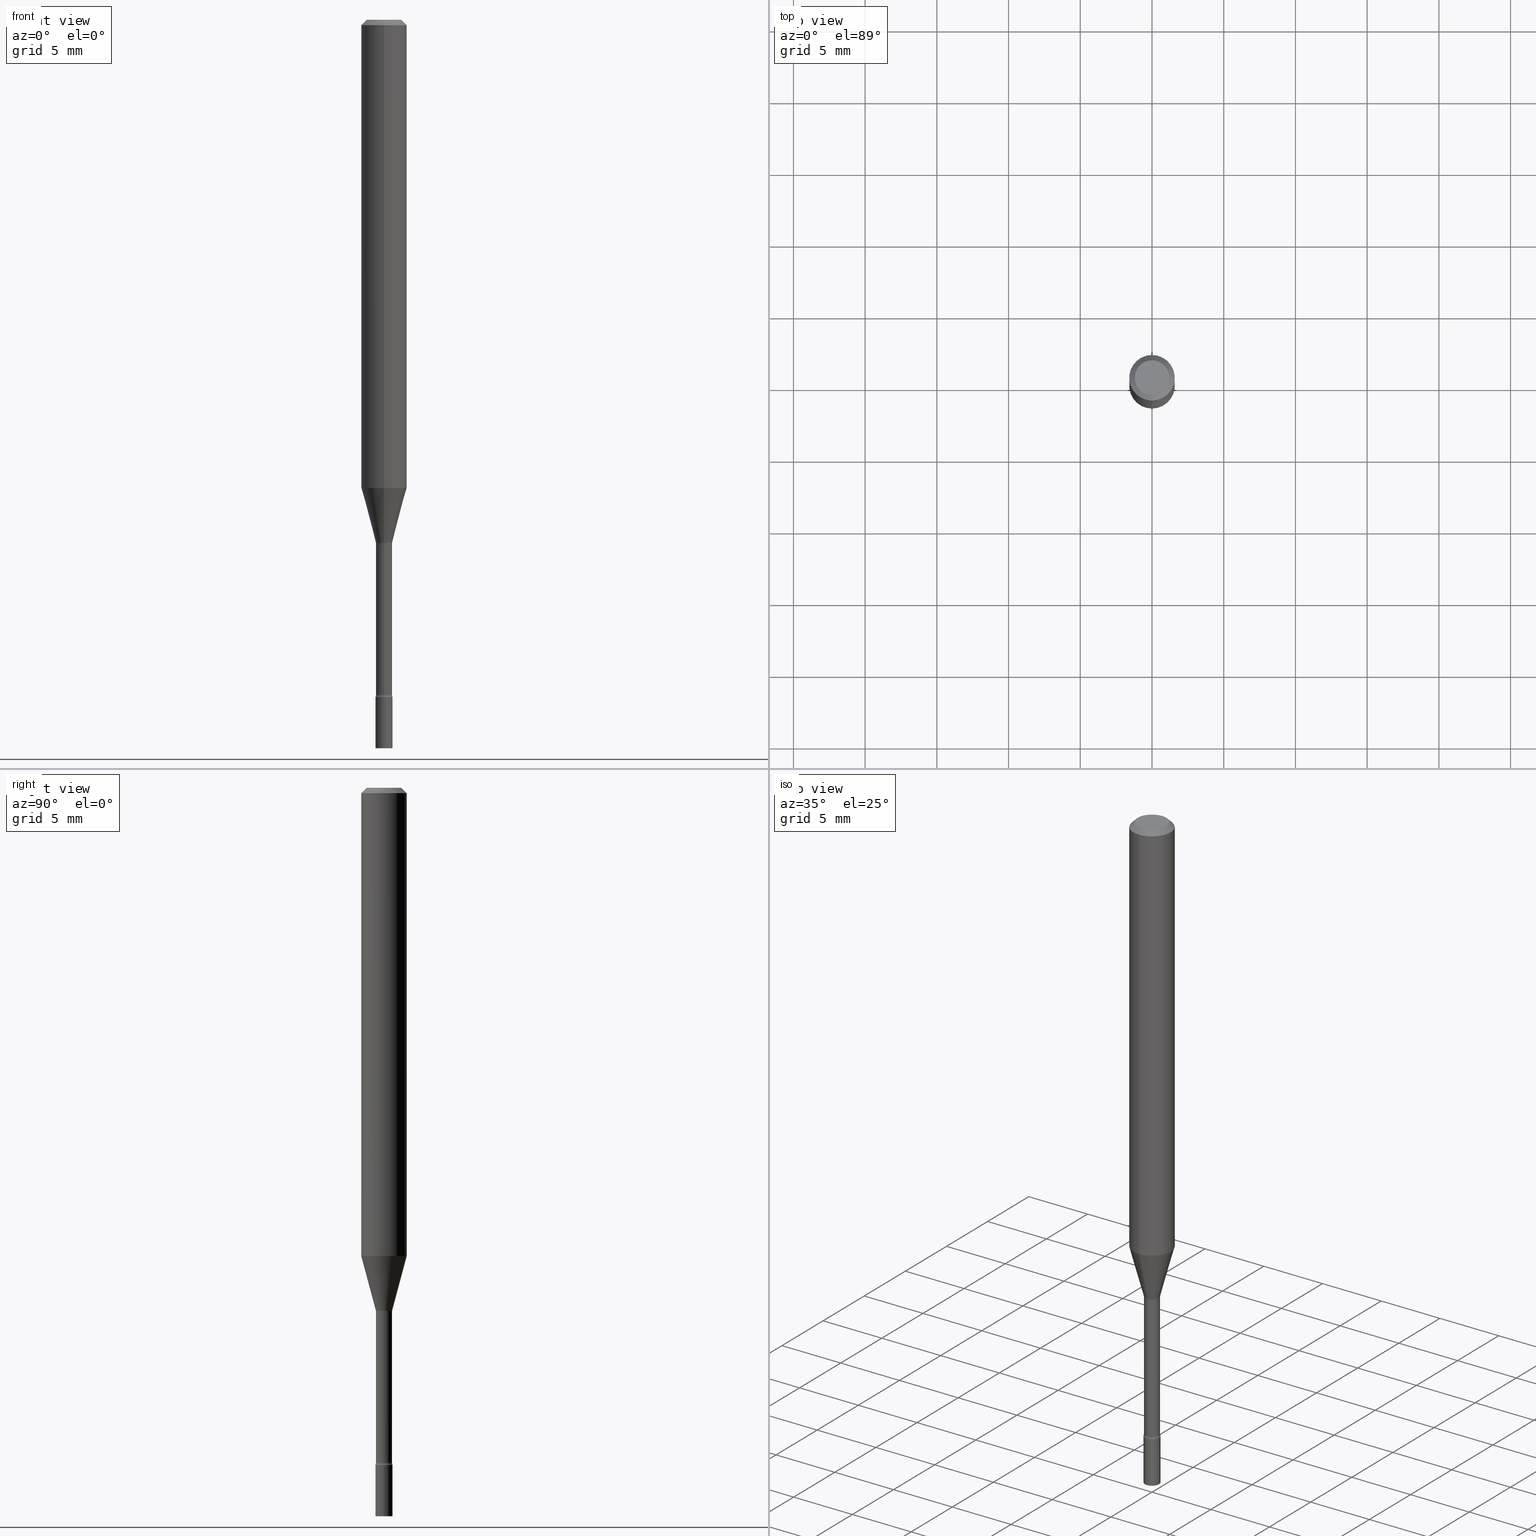
[diagram: canonical four-view strip — front | top / right | iso, engineering-drawing reading convention]
A machine part, canonical four-view strip (front | top / right | iso — engineering-drawing reading convention). The complete STEP part file that produces these views, byte-faithful:
ISO-10303-21;
HEADER;
FILE_DESCRIPTION (( 'STEP AP203' ),
    '1' );
FILE_NAME ('09856.STEP',
    '2024-03-09T02:22:24',
    ( '' ),
    ( '' ),
    'SwSTEP 2.0',
    'SolidWorks 2023',
    '' );
FILE_SCHEMA (( 'CONFIG_CONTROL_DESIGN' ));
ENDSEC;

DATA;
#1 = ORIENTED_EDGE ( 'NONE', *, *, #243, .T. ) ;
#2 = DIRECTION ( 'NONE',  ( 1.000000000000000000, -6.982962677686269866E-15, 0.000000000000000000 ) ) ;
#3 = AXIS2_PLACEMENT_3D ( 'NONE', #383, #83, #42 ) ;
#4 = APPLICATION_PROTOCOL_DEFINITION ( 'international standard', 'config_control_design', 1994, #435 ) ;
#5 = CIRCLE ( 'NONE', #487, 0.01500000000000002720 ) ;
#6 = EDGE_CURVE ( 'NONE', #318, #485, #70, .T. ) ;
#7 = DIRECTION ( 'NONE',  ( 1.000000000000000000, -7.105427357601001070E-15, 4.926315336922240552E-29 ) ) ;
#8 = CIRCLE ( 'NONE', #43, 0.02261111260566397996 ) ;
#9 = AXIS2_PLACEMENT_3D ( 'NONE', #15, #255, #408 ) ;
#10 = APPROVAL ( #56, 'UNSPECIFIED' ) ;
#11 = CIRCLE ( 'NONE', #241, 0.02350000000000000352 ) ;
#12 = LOCAL_TIME ( 21, 22, 24.00000000000000000, #402 ) ;
#13 = AXIS2_PLACEMENT_3D ( 'NONE', #507, #232, #501 ) ;
#14 = DIRECTION ( 'NONE',  ( -6.982962677686265922E-15, -1.000000000000000000, 3.491467325019567696E-15 ) ) ;
#15 = CARTESIAN_POINT ( 'NONE',  ( 3.668217887978764348E-31, -5.237200987529362293E-17, -0.01500000000000003067 ) ) ;
#16 = EDGE_CURVE ( 'NONE', #422, #485, #69, .T. ) ;
#17 = ORIENTED_EDGE ( 'NONE', *, *, #454, .T. ) ;
#18 = APPROVAL_ROLE ( '' ) ;
#19 = DIRECTION ( 'NONE',  ( -2.445468806185136597E-29, 3.491481338843145583E-15, 1.000000000000000000 ) ) ;
#20 = DIRECTION ( 'NONE',  ( 7.105427357601001859E-15, 1.000000000000000000, 0.000000000000000000 ) ) ;
#21 = CARTESIAN_POINT ( 'NONE',  ( 0.000000000000000000, 0.000000000000000000, 0.000000000000000000 ) ) ;
#22 = ORIENTED_EDGE ( 'NONE', *, *, #153, .T. ) ;
#23 = VERTEX_POINT ( 'NONE', #288 ) ;
#24 = CONICAL_SURFACE ( 'NONE', #404, 0.06250000000000000000, 0.7853981633974483900 ) ;
#25 = APPROVAL ( #514, 'UNSPECIFIED' ) ;
#26 = AXIS2_PLACEMENT_3D ( 'NONE', #455, #99, #460 ) ;
#27 = DIRECTION ( 'NONE',  ( -1.000000000000000000, 6.982962677686265922E-15, -4.883557194083112340E-29 ) ) ;
#28 = CARTESIAN_POINT ( 'NONE',  ( 3.516522486823451947E-29, -5.020662136156834766E-15, -1.437974787463811133 ) ) ;
#29 = ORIENTED_EDGE ( 'NONE', *, *, #50, .T. ) ;
#30 = ORIENTED_EDGE ( 'NONE', *, *, #208, .F. ) ;
#31 = DIRECTION ( 'NONE',  ( -6.982962677686265922E-15, -1.000000000000000000, 4.370956789862821150E-15 ) ) ;
#32 = DIRECTION ( 'NONE',  ( -2.445478591985838029E-29, 3.491467325019567696E-15, 1.000000000000000000 ) ) ;
#33 = CARTESIAN_POINT ( 'NONE',  ( 4.546144702501673568E-29, -6.490637757211377196E-15, -1.858999999999999986 ) ) ;
#34 = ORIENTED_EDGE ( 'NONE', *, *, #16, .F. ) ;
#35 = PERSON_AND_ORGANIZATION ( #355, #94 ) ;
#36 = PLANE ( 'NONE',  #3 ) ;
#37 = ORIENTED_EDGE ( 'NONE', *, *, #219, .F. ) ;
#38 =( LENGTH_UNIT ( ) NAMED_UNIT ( * ) SI_UNIT ( $, .METRE. ) );
#39 = ADVANCED_FACE ( 'NONE', ( #279 ), #370, .T. ) ;
#40 = ORIENTED_EDGE ( 'NONE', *, *, #254, .F. ) ;
#41 = DIRECTION ( 'NONE',  ( -2.445478591985837749E-29, 3.491467325019568091E-15, 1.000000000000000000 ) ) ;
#42 = DIRECTION ( 'NONE',  ( -6.982962677686265922E-15, -1.000000000000000000, 3.491467325019568091E-15 ) ) ;
#43 = AXIS2_PLACEMENT_3D ( 'NONE', #281, #278, #445 ) ;
#44 = PERSON_AND_ORGANIZATION ( #355, #94 ) ;
#45 = ADVANCED_FACE ( 'NONE', ( #420 ), #403, .T. ) ;
#46 = TOROIDAL_SURFACE ( 'NONE', #356, 0.03710000000000000103, 0.01500000000000002720 ) ;
#47 = DIRECTION ( 'NONE',  ( 1.000000000000000000, -6.982962677686269866E-15, 0.000000000000000000 ) ) ;
#48 = CC_DESIGN_PERSON_AND_ORGANIZATION_ASSIGNMENT ( #110, #156, ( #343 ) ) ;
#49 = ORIENTED_EDGE ( 'NONE', *, *, #76, .F. ) ;
#50 = EDGE_CURVE ( 'NONE', #59, #339, #416, .T. ) ;
#51 = CARTESIAN_POINT ( 'NONE',  ( -4.364351673553603615E-16, -0.06250000000000451028, -1.285225147374217780 ) ) ;
#52 = CONICAL_SURFACE ( 'NONE', #352, 0.06250000000000000000, 0.7853981633974483900 ) ;
#53 = LOCAL_TIME ( 21, 22, 24.00000000000000000, #233 ) ;
#54 = CARTESIAN_POINT ( 'NONE',  ( -2.590679153421253437E-16, -0.03710000000000502479, -1.437974787463811133 ) ) ;
#55 = AXIS2_PLACEMENT_3D ( 'NONE', #459, #447, #136 ) ;
#56 = APPROVAL_STATUS ( 'not_yet_approved' ) ;
#57 = DIRECTION ( 'NONE',  ( 1.000000000000000000, -6.982962677686265922E-15, 4.876176775795935793E-29 ) ) ;
#58 = CARTESIAN_POINT ( 'NONE',  ( 3.668217887978764348E-31, -5.237200987529362293E-17, -0.01500000000000003067 ) ) ;
#59 = VERTEX_POINT ( 'NONE', #182 ) ;
#60 = CARTESIAN_POINT ( 'NONE',  ( -2.590679153421155323E-16, -0.03710000000000652359, -1.852672283192177582 ) ) ;
#61 = CARTESIAN_POINT ( 'NONE',  ( 3.516536558558135871E-29, -5.020641984631854302E-15, -1.437974787463811133 ) ) ;
#62 = ORIENTED_EDGE ( 'NONE', *, *, #63, .T. ) ;
#63 = EDGE_CURVE ( 'NONE', #292, #114, #453, .T. ) ;
#64 = DIRECTION ( 'NONE',  ( -6.982962677686265922E-15, -1.000000000000000000, 0.000000000000000000 ) ) ;
#65 = CARTESIAN_POINT ( 'NONE',  ( 0.02350000000000000352, -6.654763431835035084E-15, -1.858999999999999986 ) ) ;
#66 = FACE_OUTER_BOUND ( 'NONE', #138, .T. ) ;
#67 = AXIS2_PLACEMENT_3D ( 'NONE', #213, #226, #178 ) ;
#68 = VERTEX_POINT ( 'NONE', #146 ) ;
#69 = CIRCLE ( 'NONE', #372, 0.06250000000000000000 ) ;
#70 = LINE ( 'NONE', #329, #128 ) ;
#71 = EDGE_LOOP ( 'NONE', ( #49, #467, #303, #34 ) ) ;
#72 = CARTESIAN_POINT ( 'NONE',  ( -1.578925554262779717E-16, -0.02261111260566898637, -1.434092501787273211 ) ) ;
#73 = CC_DESIGN_PERSON_AND_ORGANIZATION_ASSIGNMENT ( #222, #124, ( #300 ) ) ;
#74 = ORIENTED_EDGE ( 'NONE', *, *, #331, .T. ) ;
#75 = APPLICATION_PROTOCOL_DEFINITION ( 'international standard', 'config_control_design', 1994, #190 ) ;
#76 = EDGE_CURVE ( 'NONE', #464, #422, #462, .T. ) ;
#77 = VECTOR ( 'NONE', #198, 39.37007874015749564 ) ;
#78 = ORIENTED_EDGE ( 'NONE', *, *, #162, .F. ) ;
#79 = CARTESIAN_POINT ( 'NONE',  ( 0.000000000000000000, 0.000000000000000000, 0.000000000000000000 ) ) ;
#80 = DIRECTION ( 'NONE',  ( -6.982962677686265922E-15, -1.000000000000000000, 0.000000000000000000 ) ) ;
#81 = EDGE_CURVE ( 'NONE', #381, #59, #489, .T. ) ;
#82 = ORIENTED_EDGE ( 'NONE', *, *, #280, .T. ) ;
#83 = DIRECTION ( 'NONE',  ( -2.445478591985837749E-29, 3.491467325019568091E-15, 1.000000000000000000 ) ) ;
#84 = DIRECTION ( 'NONE',  ( -2.445478591985838029E-29, 3.491467325019567696E-15, 1.000000000000000000 ) ) ;
#85 = PLANE ( 'NONE',  #465 ) ;
#86 = DIRECTION ( 'NONE',  ( 4.937700262164548042E-15, 0.7071067811865451302, -0.7071067811865499042 ) ) ;
#87 = FACE_OUTER_BOUND ( 'NONE', #264, .T. ) ;
#88 = VECTOR ( 'NONE', #41, 39.37007874015748143 ) ;
#89 = LOCAL_TIME ( 21, 22, 24.00000000000000000, #480 ) ;
#90 = VECTOR ( 'NONE', #86, 39.37007874015748143 ) ;
#91 = EDGE_CURVE ( 'NONE', #114, #292, #262, .T. ) ;
#92 = ORIENTED_EDGE ( 'NONE', *, *, #16, .T. ) ;
#93 = DIRECTION ( 'NONE',  ( -6.982962677686266711E-15, -1.000000000000000000, 3.491467325019567302E-15 ) ) ;
#94 = ORGANIZATION ( 'UNSPECIFIED', 'UNSPECIFIED', '' ) ;
#95 = DIRECTION ( 'NONE',  ( -2.445478591985837749E-29, 3.491467325019568091E-15, 1.000000000000000000 ) ) ;
#96 = ADVANCED_FACE ( 'NONE', ( #66 ), #170, .F. ) ;
#97 = DIRECTION ( 'NONE',  ( -2.445478591985838029E-29, 3.491467325019567696E-15, 1.000000000000000000 ) ) ;
#98 = ORIENTED_EDGE ( 'NONE', *, *, #193, .T. ) ;
#99 = DIRECTION ( 'NONE',  ( -2.445478591985838029E-29, 3.491467325019567696E-15, 1.000000000000000000 ) ) ;
#100 = DIRECTION ( 'NONE',  ( -2.445478591985838029E-29, 3.491467325019567696E-15, 1.000000000000000000 ) ) ;
#101 = DATE_AND_TIME ( #166, #271 ) ;
#102 = LINE ( 'NONE', #411, #405 ) ;
#103 = CIRCLE ( 'NONE', #463, 0.04749999999999999362 ) ;
#104 = EDGE_LOOP ( 'NONE', ( #109, #29, #335, #426 ) ) ;
#105 = ORIENTED_EDGE ( 'NONE', *, *, #442, .T. ) ;
#106 = AXIS2_PLACEMENT_3D ( 'NONE', #228, #493, #293 ) ;
#107 = PRODUCT_RELATED_PRODUCT_CATEGORY ( 'detail', '', ( #196 ) ) ;
#108 = LINE ( 'NONE', #72, #77 ) ;
#109 = ORIENTED_EDGE ( 'NONE', *, *, #81, .T. ) ;
#110 = PERSON_AND_ORGANIZATION ( #355, #94 ) ;
#111 = ADVANCED_FACE ( 'NONE', ( #133 ), #344, .T. ) ;
#112 = EDGE_LOOP ( 'NONE', ( #451, #362 ) ) ;
#113 = PLANE ( 'NONE',  #436 ) ;
#114 = VERTEX_POINT ( 'NONE', #374 ) ;
#115 = VECTOR ( 'NONE', #450, 39.37007874015748143 ) ;
#116 = PERSON_AND_ORGANIZATION_ROLE ( 'creator' ) ;
#117 = CIRCLE ( 'NONE', #26, 0.02209999999999999812 ) ;
#118 = EDGE_CURVE ( 'NONE', #318, #349, #272, .T. ) ;
#119 = DIRECTION ( 'NONE',  ( 2.445478591985837749E-29, -3.491467325019568091E-15, -1.000000000000000000 ) ) ;
#120 = CARTESIAN_POINT ( 'NONE',  ( 1.606616180941167474E-16, 0.02261111260565897355, -1.434092501787273211 ) ) ;
#121 = CALENDAR_DATE ( 2024, 8, 3 ) ;
#122 = CIRCLE ( 'NONE', #332, 0.02350000000000000352 ) ;
#123 = APPROVAL_PERSON_ORGANIZATION ( #323, #10, #18 ) ;
#124 = PERSON_AND_ORGANIZATION_ROLE ( 'classification_officer' ) ;
#125 = EDGE_CURVE ( 'NONE', #386, #485, #102, .T. ) ;
#126 = APPROVAL ( #171, 'UNSPECIFIED' ) ;
#127 = AXIS2_PLACEMENT_3D ( 'NONE', #312, #7, #432 ) ;
#128 = VECTOR ( 'NONE', #221, 39.37007874015748143 ) ;
#129 = ORIENTED_EDGE ( 'NONE', *, *, #153, .F. ) ;
#130 = ORIENTED_EDGE ( 'NONE', *, *, #254, .T. ) ;
#131 = DIRECTION ( 'NONE',  ( -6.982962677686265922E-15, -1.000000000000000000, 3.491467325019568091E-15 ) ) ;
#132 = CARTESIAN_POINT ( 'NONE',  ( 4.546126510698169319E-29, -6.490663808909408226E-15, -1.858999999999999986 ) ) ;
#133 = FACE_OUTER_BOUND ( 'NONE', #410, .T. ) ;
#134 = ORIENTED_EDGE ( 'NONE', *, *, #211, .F. ) ;
#135 = DIRECTION ( 'NONE',  ( -2.445468806185136877E-29, 3.491481338843145188E-15, 1.000000000000000000 ) ) ;
#136 = DIRECTION ( 'NONE',  ( -6.982962677686265922E-15, -1.000000000000000000, 0.000000000000000000 ) ) ;
#137 = CC_DESIGN_PERSON_AND_ORGANIZATION_ASSIGNMENT ( #240, #351, ( #196 ) ) ;
#138 = EDGE_LOOP ( 'NONE', ( #294, #234, #98, #78 ) ) ;
#139 = CARTESIAN_POINT ( 'NONE',  ( 3.840629472727447874E-16, 0.04749999999999999362, -1.947592745229183872E-16 ) ) ;
#140 = VECTOR ( 'NONE', #135, 39.37007874015748143 ) ;
#141 = DIRECTION ( 'NONE',  ( -6.982962677686265922E-15, -1.000000000000000000, 0.000000000000000000 ) ) ;
#142 = DATE_AND_TIME ( #220, #12 ) ;
#143 = CALENDAR_DATE ( 2024, 8, 3 ) ;
#144 = CARTESIAN_POINT ( 'NONE',  ( 4.546126510698169319E-29, -6.490663808909408226E-15, -1.858999999999999986 ) ) ;
#145 = EDGE_LOOP ( 'NONE', ( #134, #154 ) ) ;
#146 = CARTESIAN_POINT ( 'NONE',  ( -0.02350000000000000352, -6.569835700394226398E-15, -2.000000000000000000 ) ) ;
#147 = FACE_OUTER_BOUND ( 'NONE', #104, .T. ) ;
#148 = DIRECTION ( 'NONE',  ( -6.982962677686265922E-15, -1.000000000000000000, 3.491467325019567696E-15 ) ) ;
#149 = DIRECTION ( 'NONE',  ( -2.445478591985838029E-29, 3.491467325019567696E-15, 1.000000000000000000 ) ) ;
#150 = ORIENTED_EDGE ( 'NONE', *, *, #440, .T. ) ;
#151 = FACE_OUTER_BOUND ( 'NONE', #473, .T. ) ;
#152 = CC_DESIGN_APPROVAL ( #10, ( #343 ) ) ;
#153 = EDGE_CURVE ( 'NONE', #59, #292, #201, .T. ) ;
#154 = ORIENTED_EDGE ( 'NONE', *, *, #454, .F. ) ;
#155 = AXIS2_PLACEMENT_3D ( 'NONE', #296, #258, #180 ) ;
#156 = PERSON_AND_ORGANIZATION_ROLE ( 'design_supplier' ) ;
#157 = EDGE_LOOP ( 'NONE', ( #474, #17, #412, #37 ) ) ;
#158 = APPROVAL_DATE_TIME ( #342, #25 ) ;
#159 = CARTESIAN_POINT ( 'NONE',  ( 4.440892098500937762E-16, 0.06249999999999548278, -1.285225147374218224 ) ) ;
#160 = CARTESIAN_POINT ( 'NONE',  ( 1.570299446030275858E-16, 0.02209999999999497783, -1.437974787463811133 ) ) ;
#161 = EDGE_LOOP ( 'NONE', ( #306, #503, #105, #92 ) ) ;
#162 = EDGE_CURVE ( 'NONE', #491, #283, #5, .T. ) ;
#163 = CARTESIAN_POINT ( 'NONE',  ( 3.316907271900976096E-16, 0.04749999999999999362, -1.803019862306739220E-16 ) ) ;
#164 = AXIS2_PLACEMENT_3D ( 'NONE', #431, #347, #308 ) ;
#165 = DIRECTION ( 'NONE',  ( -6.982962677686266711E-15, -1.000000000000000000, 3.491467325019567302E-15 ) ) ;
#166 = CALENDAR_DATE ( 2024, 8, 3 ) ;
#167 = ORIENTED_EDGE ( 'NONE', *, *, #118, .F. ) ;
#168 = EDGE_CURVE ( 'NONE', #485, #422, #393, .T. ) ;
#169 = CIRCLE ( 'NONE', #185, 0.02261111260566397996 ) ;
#170 = TOROIDAL_SURFACE ( 'NONE', #106, 0.03710000000000000103, 0.01500000000000002720 ) ;
#171 = APPROVAL_STATUS ( 'not_yet_approved' ) ;
#172 = PRODUCT_DEFINITION_SHAPE ( 'NONE', 'NONE',  #389 ) ;
#173 = ADVANCED_FACE ( 'NONE', ( #366 ), #477, .T. ) ;
#174 = ORIENTED_EDGE ( 'NONE', *, *, #91, .T. ) ;
#175 = CIRCLE ( 'NONE', #357, 0.06250000000000000000 ) ;
#176 = CARTESIAN_POINT ( 'NONE',  ( 3.668217887978764348E-31, -5.237200987529362293E-17, -0.01500000000000003067 ) ) ;
#177 = ORIENTED_EDGE ( 'NONE', *, *, #162, .T. ) ;
#178 = DIRECTION ( 'NONE',  ( 1.000000000000000000, -6.982962677686269866E-15, 0.000000000000000000 ) ) ;
#179 = LINE ( 'NONE', #496, #115 ) ;
#180 = DIRECTION ( 'NONE',  ( -6.982962677686265922E-15, -1.000000000000000000, 0.000000000000000000 ) ) ;
#181 = DIRECTION ( 'NONE',  ( -2.445478591985838029E-29, 3.491467325019567696E-15, 1.000000000000000000 ) ) ;
#182 = CARTESIAN_POINT ( 'NONE',  ( 1.620037437533484049E-16, 0.02209999999999359352, -1.852672283192177582 ) ) ;
#183 = DIRECTION ( 'NONE',  ( -2.445468806185136597E-29, 3.491481338843145583E-15, 1.000000000000000000 ) ) ;
#184 = CARTESIAN_POINT ( 'NONE',  ( 0.000000000000000000, 0.000000000000000000, 0.000000000000000000 ) ) ;
#185 = AXIS2_PLACEMENT_3D ( 'NONE', #286, #368, #495 ) ;
#186 = CARTESIAN_POINT ( 'NONE',  ( 0.000000000000000000, 0.000000000000000000, 0.000000000000000000 ) ) ;
#187 = AXIS2_PLACEMENT_3D ( 'NONE', #519, #84, #390 ) ;
#188 = DIRECTION ( 'NONE',  ( 1.839019923739599526E-15, 0.2588190451025248473, 0.9659258262890670910 ) ) ;
#189 = ORIENTED_EDGE ( 'NONE', *, *, #322, .F. ) ;
#190 = APPLICATION_CONTEXT ( 'configuration controlled 3d designs of mechanical parts and assemblies' ) ;
#191 = FACE_OUTER_BOUND ( 'NONE', #441, .T. ) ;
#192 = DIRECTION ( 'NONE',  ( -6.982962677686265922E-15, -1.000000000000000000, 3.491467325019567696E-15 ) ) ;
#193 = EDGE_CURVE ( 'NONE', #339, #283, #117, .T. ) ;
#194 = ORIENTED_EDGE ( 'NONE', *, *, #290, .F. ) ;
#195 = FACE_OUTER_BOUND ( 'NONE', #470, .T. ) ;
#196 = PRODUCT ( '09856', '09856', '', ( #205 ) ) ;
#197 = ORIENTED_EDGE ( 'NONE', *, *, #76, .T. ) ;
#198 = DIRECTION ( 'NONE',  ( -1.807323732225329350E-15, -0.2588190451025180194, 0.9659258262890689783 ) ) ;
#199 = CALENDAR_DATE ( 2024, 8, 3 ) ;
#200 = AXIS2_PLACEMENT_3D ( 'NONE', #79, #478, #269 ) ;
#201 = CIRCLE ( 'NONE', #268, 0.01499999999999998904 ) ;
#202 = CARTESIAN_POINT ( 'NONE',  ( 3.507042512048188960E-29, -5.007087111045831166E-15, -1.434092501787273211 ) ) ;
#203 = CC_DESIGN_DATE_AND_TIME_ASSIGNMENT ( #101, #276, ( #389 ) ) ;
#204 = ORIENTED_EDGE ( 'NONE', *, *, #481, .T. ) ;
#205 = MECHANICAL_CONTEXT ( 'NONE', #190, 'mechanical' ) ;
#206 = LENGTH_MEASURE_WITH_UNIT ( LENGTH_MEASURE( 0.02539999999999999897 ), #38 );
#207 = CC_DESIGN_DATE_AND_TIME_ASSIGNMENT ( #438, #244, ( #300 ) ) ;
#208 = EDGE_CURVE ( 'NONE', #381, #114, #353, .T. ) ;
#209 = ADVANCED_FACE ( 'NONE', ( #191 ), #52, .T. ) ;
#210 = VERTEX_POINT ( 'NONE', #65 ) ;
#211 = EDGE_CURVE ( 'NONE', #424, #68, #11, .T. ) ;
#212 = MANIFOLD_SOLID_BREP ( 'Body-Move/Copy2[1]', #444 ) ;
#213 = CARTESIAN_POINT ( 'NONE',  ( 4.546126510698169319E-29, -6.490663808909408226E-15, -1.858999999999999986 ) ) ;
#214 = LOCAL_TIME ( 21, 22, 24.00000000000000000, #483 ) ;
#215 = CARTESIAN_POINT ( 'NONE',  ( 3.142990583785493865E-29, -4.487321607350540658E-15, -1.285225147374218002 ) ) ;
#216 = AXIS2_PLACEMENT_3D ( 'NONE', #186, #261, #218 ) ;
#217 = DIRECTION ( 'NONE',  ( -1.000000000000000000, 6.982962677686265922E-15, -4.883557194083112340E-29 ) ) ;
#218 = DIRECTION ( 'NONE',  ( 1.000000000000000000, -6.982962677686265922E-15, 4.876176775795935793E-29 ) ) ;
#219 = EDGE_CURVE ( 'NONE', #23, #210, #298, .T. ) ;
#220 = CALENDAR_DATE ( 2024, 8, 3 ) ;
#221 = DIRECTION ( 'NONE',  ( -4.851104656540964275E-15, -0.7071067811865500152, -0.7071067811865450192 ) ) ;
#222 = PERSON_AND_ORGANIZATION ( #355, #94 ) ;
#223 = CARTESIAN_POINT ( 'NONE',  ( 1.640996229256761859E-16, 0.02349999999999301953, -2.000000000000000000 ) ) ;
#224 = ORIENTED_EDGE ( 'NONE', *, *, #81, .F. ) ;
#225 = EDGE_CURVE ( 'NONE', #338, #491, #169, .T. ) ;
#226 = DIRECTION ( 'NONE',  ( -2.445468806185136597E-29, 3.491481338843145583E-15, 1.000000000000000000 ) ) ;
#227 = VECTOR ( 'NONE', #188, 39.37007874015748143 ) ;
#228 = CARTESIAN_POINT ( 'NONE',  ( 3.516522486823451947E-29, -5.020662136156834766E-15, -1.437974787463811133 ) ) ;
#229 = VECTOR ( 'NONE', #95, 39.37007874015748143 ) ;
#230 = MANIFOLD_SOLID_BREP ( 'Body-Move/Copy2[2]', #394 ) ;
#231 = ORIENTED_EDGE ( 'NONE', *, *, #168, .T. ) ;
#232 = DIRECTION ( 'NONE',  ( -2.445468806185136597E-29, 3.491481338843145583E-15, 1.000000000000000000 ) ) ;
#233 = COORDINATED_UNIVERSAL_TIME_OFFSET ( 5, 0, .BEHIND. ) ;
#234 = ORIENTED_EDGE ( 'NONE', *, *, #310, .T. ) ;
#235 = LINE ( 'NONE', #299, #88 ) ;
#236 = EDGE_CURVE ( 'NONE', #424, #210, #458, .T. ) ;
#237 = AXIS2_PLACEMENT_3D ( 'NONE', #202, #313, #80 ) ;
#238 = ORIENTED_EDGE ( 'NONE', *, *, #118, .T. ) ;
#239 = DIRECTION ( 'NONE',  ( -2.445478591985838029E-29, 3.491467325019567696E-15, 1.000000000000000000 ) ) ;
#240 = PERSON_AND_ORGANIZATION ( #355, #94 ) ;
#241 = AXIS2_PLACEMENT_3D ( 'NONE', #400, #183, #47 ) ;
#242 = CIRCLE ( 'NONE', #317, 0.02210000000000006057 ) ;
#243 = EDGE_CURVE ( 'NONE', #59, #381, #242, .T. ) ;
#244 = DATE_TIME_ROLE ( 'classification_date' ) ;
#245 = FACE_OUTER_BOUND ( 'NONE', #161, .T. ) ;
#246 = ADVANCED_FACE ( 'NONE', ( #147 ), #320, .T. ) ;
#247 = CIRCLE ( 'NONE', #284, 0.02209999999999999812 ) ;
#248 = CC_DESIGN_SECURITY_CLASSIFICATION ( #300, ( #343 ) ) ;
#249 = SECURITY_CLASSIFICATION_LEVEL ( 'unclassified' ) ;
#250 = PERSON_AND_ORGANIZATION_ROLE ( 'creator' ) ;
#251 = DIRECTION ( 'NONE',  ( -2.445478591985838029E-29, 3.491467325019567696E-15, 1.000000000000000000 ) ) ;
#252 = DIRECTION ( 'NONE',  ( 1.000000000000000000, -7.105427357601001070E-15, 4.926315336922240552E-29 ) ) ;
#253 = CIRCLE ( 'NONE', #418, 0.06250000000000000000 ) ;
#254 = EDGE_CURVE ( 'NONE', #491, #338, #8, .T. ) ;
#255 = DIRECTION ( 'NONE',  ( -2.445478591985838029E-29, 3.491467325019567696E-15, 1.000000000000000000 ) ) ;
#256 = DIRECTION ( 'NONE',  ( 2.445478591985838029E-29, -3.491467325019567696E-15, -1.000000000000000000 ) ) ;
#257 = CARTESIAN_POINT ( 'NONE',  ( 7.070997803370271275E-46, -1.009542993615190646E-31, -2.891457658448894903E-17 ) ) ;
#258 = DIRECTION ( 'NONE',  ( -2.445478591985838029E-29, 3.491467325019567696E-15, 1.000000000000000000 ) ) ;
#259 = FACE_OUTER_BOUND ( 'NONE', #112, .T. ) ;
#260 = AXIS2_PLACEMENT_3D ( 'NONE', #132, #415, #57 ) ;
#261 = DIRECTION ( 'NONE',  ( -2.445468806185136597E-29, 3.491481338843145583E-15, 1.000000000000000000 ) ) ;
#262 = CIRCLE ( 'NONE', #319, 0.02350000000000000352 ) ;
#263 = ORIENTED_EDGE ( 'NONE', *, *, #290, .T. ) ;
#264 = EDGE_LOOP ( 'NONE', ( #130, #340, #505, #194 ) ) ;
#265 = FACE_OUTER_BOUND ( 'NONE', #145, .T. ) ;
#266 = ORIENTED_EDGE ( 'NONE', *, *, #211, .T. ) ;
#267 = CARTESIAN_POINT ( 'NONE',  ( 7.070997803370271275E-46, -1.009542993615190646E-31, -2.891457658448894903E-17 ) ) ;
#268 = AXIS2_PLACEMENT_3D ( 'NONE', #282, #252, #20 ) ;
#269 = DIRECTION ( 'NONE',  ( 1.000000000000000000, 0.000000000000000000, 0.000000000000000000 ) ) ;
#270 =( GEOMETRIC_REPRESENTATION_CONTEXT ( 3 ) GLOBAL_UNCERTAINTY_ASSIGNED_CONTEXT ( ( #439 ) ) GLOBAL_UNIT_ASSIGNED_CONTEXT ( ( #472, #466, #425 ) ) REPRESENTATION_CONTEXT ( 'NONE', 'WORKASPACE' ) );
#271 = LOCAL_TIME ( 21, 22, 24.00000000000000000, #399 ) ;
#272 = CIRCLE ( 'NONE', #429, 0.04749999999999999362 ) ;
#273 = PERSON_AND_ORGANIZATION ( #355, #94 ) ;
#274 = EDGE_CURVE ( 'NONE', #464, #386, #253, .T. ) ;
#275 = ORIENTED_EDGE ( 'NONE', *, *, #50, .F. ) ;
#276 = DATE_TIME_ROLE ( 'creation_date' ) ;
#277 = CC_DESIGN_PERSON_AND_ORGANIZATION_ASSIGNMENT ( #35, #116, ( #343 ) ) ;
#278 = DIRECTION ( 'NONE',  ( -2.445478591985838029E-29, 3.491467325019567696E-15, 1.000000000000000000 ) ) ;
#279 = FACE_OUTER_BOUND ( 'NONE', #157, .T. ) ;
#280 = EDGE_CURVE ( 'NONE', #381, #283, #235, .T. ) ;
#281 = CARTESIAN_POINT ( 'NONE',  ( 3.507042512048188960E-29, -5.007087111045831166E-15, -1.434092501787273211 ) ) ;
#282 = CARTESIAN_POINT ( 'NONE',  ( 2.636113549670428316E-16, 0.03709999999999358949, -1.852672283192177582 ) ) ;
#283 = VERTEX_POINT ( 'NONE', #379 ) ;
#284 = AXIS2_PLACEMENT_3D ( 'NONE', #61, #251, #409 ) ;
#285 = DATE_AND_TIME ( #143, #214 ) ;
#286 = CARTESIAN_POINT ( 'NONE',  ( 3.507042512048188960E-29, -5.007087111045831166E-15, -1.434092501787273211 ) ) ;
#287 = DIRECTION ( 'NONE',  ( 1.000000000000000000, -6.982962677686269866E-15, 0.000000000000000000 ) ) ;
#288 = CARTESIAN_POINT ( 'NONE',  ( -0.02350000000000000352, -6.569835700394226398E-15, -1.858999999999999986 ) ) ;
#289 = ORIENTED_EDGE ( 'NONE', *, *, #225, .T. ) ;
#290 = EDGE_CURVE ( 'NONE', #491, #386, #108, .T. ) ;
#291 = PLANE ( 'NONE',  #260 ) ;
#292 = VERTEX_POINT ( 'NONE', #307 ) ;
#293 = DIRECTION ( 'NONE',  ( -6.982962677686265922E-15, -1.000000000000000000, 3.491467325019567696E-15 ) ) ;
#294 = ORIENTED_EDGE ( 'NONE', *, *, #225, .F. ) ;
#295 = FACE_OUTER_BOUND ( 'NONE', #71, .T. ) ;
#296 = CARTESIAN_POINT ( 'NONE',  ( 4.530670406511994597E-29, -6.468544740734887756E-15, -1.852672283192177582 ) ) ;
#297 = ORIENTED_EDGE ( 'NONE', *, *, #208, .T. ) ;
#298 = CIRCLE ( 'NONE', #67, 0.02350000000000000352 ) ;
#299 = CARTESIAN_POINT ( 'NONE',  ( -1.543234751768666594E-16, -0.02210000000000002587, 7.716142788293254101E-17 ) ) ;
#300 = SECURITY_CLASSIFICATION ( '', '', #249 ) ;
#301 = ORIENTED_EDGE ( 'NONE', *, *, #236, .F. ) ;
#302 = DIRECTION ( 'NONE',  ( -2.445468806185136597E-29, 3.491481338843145583E-15, 1.000000000000000000 ) ) ;
#303 = ORIENTED_EDGE ( 'NONE', *, *, #125, .T. ) ;
#304 = ADVANCED_FACE ( 'NONE', ( #245 ), #24, .T. ) ;
#305 = CARTESIAN_POINT ( 'NONE',  ( -4.364351673553912750E-16, -0.06250000000000005551, -0.01499999999999981209 ) ) ;
#306 = ORIENTED_EDGE ( 'NONE', *, *, #6, .F. ) ;
#307 = CARTESIAN_POINT ( 'NONE',  ( 1.669775429036689529E-16, 0.02349999999999350525, -1.858999999999999986 ) ) ;
#308 = DIRECTION ( 'NONE',  ( -6.982962677686265922E-15, -1.000000000000000000, 3.491467325019567696E-15 ) ) ;
#309 = AXIS2_PLACEMENT_3D ( 'NONE', #184, #32, #14 ) ;
#310 = EDGE_CURVE ( 'NONE', #338, #339, #443, .T. ) ;
#311 = CARTESIAN_POINT ( 'NONE',  ( -1.578925554262779717E-16, -0.02261111260566898637, -1.434092501787273211 ) ) ;
#312 = CARTESIAN_POINT ( 'NONE',  ( 2.636113549670323299E-16, 0.03709999999999498421, -1.437974787463811133 ) ) ;
#313 = DIRECTION ( 'NONE',  ( -2.445478591985838029E-29, 3.491467325019567696E-15, 1.000000000000000000 ) ) ;
#314 = ADVANCED_FACE ( 'NONE', ( #265 ), #85, .T. ) ;
#315 = APPROVAL_ROLE ( '' ) ;
#316 = ADVANCED_FACE ( 'NONE', ( #87 ), #475, .T. ) ;
#317 = AXIS2_PLACEMENT_3D ( 'NONE', #414, #324, #511 ) ;
#318 = VERTEX_POINT ( 'NONE', #479 ) ;
#319 = AXIS2_PLACEMENT_3D ( 'NONE', #456, #97, #64 ) ;
#320 = CYLINDRICAL_SURFACE ( 'NONE', #397, 0.02210000000000002587 ) ;
#321 = CARTESIAN_POINT ( 'NONE',  ( 4.440892098500625669E-16, 0.06250000000000000000, -2.182167078137229810E-16 ) ) ;
#322 = EDGE_CURVE ( 'NONE', #338, #464, #334, .T. ) ;
#323 = PERSON_AND_ORGANIZATION ( #355, #94 ) ;
#324 = DIRECTION ( 'NONE',  ( -2.445478591985838029E-29, 3.491467325019567696E-15, 1.000000000000000000 ) ) ;
#325 = DIRECTION ( 'NONE',  ( -2.445478591985837749E-29, 3.491467325019568091E-15, 1.000000000000000000 ) ) ;
#326 = ORIENTED_EDGE ( 'NONE', *, *, #6, .T. ) ;
#327 = DIRECTION ( 'NONE',  ( -6.982962677686269077E-15, -1.000000000000000000, 0.000000000000000000 ) ) ;
#328 = DIRECTION ( 'NONE',  ( -2.445478591985838029E-29, 3.491467325019567696E-15, 1.000000000000000000 ) ) ;
#329 = CARTESIAN_POINT ( 'NONE',  ( -4.287811248607203282E-16, -0.06250000000000005551, -0.01499999999999981209 ) ) ;
#330 = ADVANCED_BREP_SHAPE_REPRESENTATION ( '09856', ( #212, #230, #200 ), #270 ) ;
#331 = EDGE_CURVE ( 'NONE', #386, #464, #175, .T. ) ;
#332 = AXIS2_PLACEMENT_3D ( 'NONE', #144, #19, #287 ) ;
#333 = DIRECTION ( 'NONE',  ( -2.445478591985838029E-29, 3.491467325019567696E-15, 1.000000000000000000 ) ) ;
#334 = LINE ( 'NONE', #120, #227 ) ;
#335 = ORIENTED_EDGE ( 'NONE', *, *, #345, .F. ) ;
#336 = CARTESIAN_POINT ( 'NONE',  ( 0.02350000000000000352, -1.640996229256272766E-16, 1.145901542312045115E-30 ) ) ;
#337 = DIRECTION ( 'NONE',  ( -2.445478591985837749E-29, 3.491467325019568091E-15, 1.000000000000000000 ) ) ;
#338 = VERTEX_POINT ( 'NONE', #469 ) ;
#339 = VERTEX_POINT ( 'NONE', #160 ) ;
#340 = ORIENTED_EDGE ( 'NONE', *, *, #322, .T. ) ;
#341 = TOROIDAL_SURFACE ( 'NONE', #452, 0.03710000000000005654, 0.01499999999999999077 ) ;
#342 = DATE_AND_TIME ( #199, #53 ) ;
#343 = PRODUCT_DEFINITION_FORMATION_WITH_SPECIFIED_SOURCE ( 'ANY', '', #196, .NOT_KNOWN. ) ;
#344 = CONICAL_SURFACE ( 'NONE', #55, 0.02261111260566397996, 0.2617993877991501850 ) ;
#345 = EDGE_CURVE ( 'NONE', #283, #339, #247, .T. ) ;
#346 = EDGE_LOOP ( 'NONE', ( #266, #150, #520, #301 ) ) ;
#347 = DIRECTION ( 'NONE',  ( -2.445478591985838029E-29, 3.491467325019567696E-15, 1.000000000000000000 ) ) ;
#348 = DIRECTION ( 'NONE',  ( -6.982962677686265922E-15, -1.000000000000000000, 4.370956789862821150E-15 ) ) ;
#349 = VERTEX_POINT ( 'NONE', #139 ) ;
#350 = ADVANCED_FACE ( 'NONE', ( #195 ), #369, .T. ) ;
#351 = PERSON_AND_ORGANIZATION_ROLE ( 'design_owner' ) ;
#352 = AXIS2_PLACEMENT_3D ( 'NONE', #176, #256, #499 ) ;
#353 = CIRCLE ( 'NONE', #488, 0.01499999999999998904 ) ;
#354 = DIRECTION ( 'NONE',  ( 6.982962677686265922E-15, 1.000000000000000000, -3.483106191921935554E-15 ) ) ;
#355 = PERSON ( 'UNSPECIFIED', 'UNSPECIFIED', 'UNSPECIFIED', ('UNSPECIFIED'), ('UNSPECIFIED'), ('UNSPECIFIED') ) ;
#356 = AXIS2_PLACEMENT_3D ( 'NONE', #28, #181, #192 ) ;
#357 = AXIS2_PLACEMENT_3D ( 'NONE', #388, #508, #348 ) ;
#358 = CC_DESIGN_APPROVAL ( #25, ( #389 ) ) ;
#359 = VECTOR ( 'NONE', #325, 39.37007874015748143 ) ;
#360 = CARTESIAN_POINT ( 'NONE',  ( 0.02350000000000000352, -7.147062300611918023E-15, -2.000000000000000000 ) ) ;
#361 = DIRECTION ( 'NONE',  ( -6.982962677686267499E-15, -1.000000000000000000, 0.000000000000000000 ) ) ;
#362 = ORIENTED_EDGE ( 'NONE', *, *, #219, .T. ) ;
#363 = CARTESIAN_POINT ( 'NONE',  ( 3.668217887978764348E-31, -5.237200987529362293E-17, -0.01500000000000003067 ) ) ;
#364 = FACE_OUTER_BOUND ( 'NONE', #497, .T. ) ;
#365 = ADVANCED_FACE ( 'NONE', ( #461 ), #341, .F. ) ;
#366 = FACE_OUTER_BOUND ( 'NONE', #509, .T. ) ;
#367 = APPROVAL_DATE_TIME ( #285, #126 ) ;
#368 = DIRECTION ( 'NONE',  ( -2.445478591985838029E-29, 3.491467325019567696E-15, 1.000000000000000000 ) ) ;
#369 = CYLINDRICAL_SURFACE ( 'NONE', #427, 0.06250000000000000000 ) ;
#370 = CYLINDRICAL_SURFACE ( 'NONE', #216, 0.02350000000000000352 ) ;
#371 = TOROIDAL_SURFACE ( 'NONE', #164, 0.03710000000000005654, 0.01499999999999999077 ) ;
#372 = AXIS2_PLACEMENT_3D ( 'NONE', #58, #333, #512 ) ;
#373 = CARTESIAN_POINT ( 'NONE',  ( 4.440892098500941706E-16, 0.06249999999999995143, -0.01500000000000024751 ) ) ;
#374 = CARTESIAN_POINT ( 'NONE',  ( -1.640996229255817445E-16, -0.02350000000000649139, -1.858999999999999986 ) ) ;
#375 = ORIENTED_EDGE ( 'NONE', *, *, #442, .F. ) ;
#376 = CYLINDRICAL_SURFACE ( 'NONE', #309, 0.06250000000000000000 ) ;
#377 = CARTESIAN_POINT ( 'NONE',  ( 1.570299446029823003E-16, 0.02210000000000002587, -7.716142788293254101E-17 ) ) ;
#378 = ORIENTED_EDGE ( 'NONE', *, *, #345, .T. ) ;
#379 = CARTESIAN_POINT ( 'NONE',  ( -1.543234751768313085E-16, -0.02210000000000501841, -1.437974787463811133 ) ) ;
#380 = EDGE_CURVE ( 'NONE', #210, #23, #122, .T. ) ;
#381 = VERTEX_POINT ( 'NONE', #446 ) ;
#382 = AXIS2_PLACEMENT_3D ( 'NONE', #468, #302, #2 ) ;
#383 = CARTESIAN_POINT ( 'NONE',  ( 1.640996229256727347E-16, 0.02349999999999350872, -1.858999999999999986 ) ) ;
#384 = CC_DESIGN_APPROVAL ( #126, ( #300 ) ) ;
#385 = DIRECTION ( 'NONE',  ( 2.438088387897960049E-29, -3.491481338843145188E-15, -1.000000000000000000 ) ) ;
#386 = VERTEX_POINT ( 'NONE', #51 ) ;
#387 = FACE_OUTER_BOUND ( 'NONE', #515, .T. ) ;
#388 = CARTESIAN_POINT ( 'NONE',  ( 3.142990583785493865E-29, -4.487321607350540658E-15, -1.285225147374218002 ) ) ;
#389 = PRODUCT_DEFINITION ( 'UNKNOWN', '', #343, #398 ) ;
#390 = DIRECTION ( 'NONE',  ( -6.982962677686265922E-15, -1.000000000000000000, 3.491467325019568091E-15 ) ) ;
#391 = DIRECTION ( 'NONE',  ( -1.000000000000000000, 6.982962677686265922E-15, -4.876176775795935793E-29 ) ) ;
#392 = FACE_OUTER_BOUND ( 'NONE', #448, .T. ) ;
#393 = CIRCLE ( 'NONE', #9, 0.06250000000000000000 ) ;
#394 = CLOSED_SHELL ( 'NONE', ( #96, #246, #498, #209, #350, #316, #111, #428, #304, #484, #506, #365, #173, #419 ) ) ;
#395 = ORIENTED_EDGE ( 'NONE', *, *, #310, .F. ) ;
#396 = ADVANCED_FACE ( 'NONE', ( #259 ), #291, .T. ) ;
#397 = AXIS2_PLACEMENT_3D ( 'NONE', #492, #406, #131 ) ;
#398 = DESIGN_CONTEXT ( 'detailed design', #435, 'design' ) ;
#399 = COORDINATED_UNIVERSAL_TIME_OFFSET ( 5, 0, .BEHIND. ) ;
#400 = CARTESIAN_POINT ( 'NONE',  ( 4.890937612370273194E-29, -6.982962677686291165E-15, -2.000000000000000000 ) ) ;
#401 = ORIENTED_EDGE ( 'NONE', *, *, #243, .F. ) ;
#402 = COORDINATED_UNIVERSAL_TIME_OFFSET ( 5, 0, .BEHIND. ) ;
#403 = CYLINDRICAL_SURFACE ( 'NONE', #13, 0.02350000000000000352 ) ;
#404 = AXIS2_PLACEMENT_3D ( 'NONE', #363, #433, #354 ) ;
#405 = VECTOR ( 'NONE', #337, 39.37007874015748143 ) ;
#406 = DIRECTION ( 'NONE',  ( -2.445478591985838029E-29, 3.491467325019567696E-15, 1.000000000000000000 ) ) ;
#407 = DIRECTION ( 'NONE',  ( -2.445478591985838029E-29, 3.491467325019567696E-15, 1.000000000000000000 ) ) ;
#408 = DIRECTION ( 'NONE',  ( -6.982962677686265922E-15, -1.000000000000000000, 3.483106191921935554E-15 ) ) ;
#409 = DIRECTION ( 'NONE',  ( -6.982962677686265922E-15, -1.000000000000000000, 0.000000000000000000 ) ) ;
#410 = EDGE_LOOP ( 'NONE', ( #189, #289, #263, #513 ) ) ;
#411 = CARTESIAN_POINT ( 'NONE',  ( -4.364351673553916201E-16, -0.06250000000000000000, 2.182167078137229810E-16 ) ) ;
#412 = ORIENTED_EDGE ( 'NONE', *, *, #236, .T. ) ;
#413 = APPROVAL_DATE_TIME ( #142, #10 ) ;
#414 = CARTESIAN_POINT ( 'NONE',  ( 4.530670406511994597E-29, -6.468544740734887756E-15, -1.852672283192177582 ) ) ;
#415 = DIRECTION ( 'NONE',  ( -2.438088387897960049E-29, 3.491481338843145188E-15, 1.000000000000000000 ) ) ;
#416 = LINE ( 'NONE', #377, #229 ) ;
#417 = ORIENTED_EDGE ( 'NONE', *, *, #63, .F. ) ;
#418 = AXIS2_PLACEMENT_3D ( 'NONE', #215, #449, #31 ) ;
#419 = ADVANCED_FACE ( 'NONE', ( #364 ), #46, .F. ) ;
#420 = FACE_OUTER_BOUND ( 'NONE', #346, .T. ) ;
#421 = EDGE_LOOP ( 'NONE', ( #129, #224, #297, #174 ) ) ;
#422 = VERTEX_POINT ( 'NONE', #373 ) ;
#423 = APPROVAL_ROLE ( '' ) ;
#424 = VERTEX_POINT ( 'NONE', #360 ) ;
#425 =( NAMED_UNIT ( * ) SI_UNIT ( $, .STERADIAN. ) SOLID_ANGLE_UNIT ( ) );
#426 = ORIENTED_EDGE ( 'NONE', *, *, #280, .F. ) ;
#427 = AXIS2_PLACEMENT_3D ( 'NONE', #21, #407, #500 ) ;
#428 = ADVANCED_FACE ( 'NONE', ( #295 ), #376, .T. ) ;
#429 = AXIS2_PLACEMENT_3D ( 'NONE', #257, #100, #93 ) ;
#430 = DIMENSIONAL_EXPONENTS ( 1.000000000000000000, 0.000000000000000000, 0.000000000000000000, 0.000000000000000000, 0.000000000000000000, 0.000000000000000000, 0.000000000000000000 ) ;
#431 = CARTESIAN_POINT ( 'NONE',  ( 4.530652276630265840E-29, -6.468570703757412318E-15, -1.852672283192177582 ) ) ;
#432 = DIRECTION ( 'NONE',  ( 7.105427357601001859E-15, 1.000000000000000000, 0.000000000000000000 ) ) ;
#433 = DIRECTION ( 'NONE',  ( 2.445478591985838029E-29, -3.491467325019567696E-15, -1.000000000000000000 ) ) ;
#434 = DIRECTION ( 'NONE',  ( 6.982962677686265922E-15, 1.000000000000000000, -3.491467325019568091E-15 ) ) ;
#435 = APPLICATION_CONTEXT ( 'configuration controlled 3d designs of mechanical parts and assemblies' ) ;
#436 = AXIS2_PLACEMENT_3D ( 'NONE', #163, #119, #434 ) ;
#437 = APPROVAL_PERSON_ORGANIZATION ( #273, #126, #315 ) ;
#438 = DATE_AND_TIME ( #121, #89 ) ;
#439 = UNCERTAINTY_MEASURE_WITH_UNIT (LENGTH_MEASURE( 1.000000000000000082E-05 ), #472, 'distance_accuracy_value', 'NONE');
#440 = EDGE_CURVE ( 'NONE', #68, #23, #179, .T. ) ;
#441 = EDGE_LOOP ( 'NONE', ( #167, #326, #231, #375 ) ) ;
#442 = EDGE_CURVE ( 'NONE', #349, #422, #476, .T. ) ;
#443 = CIRCLE ( 'NONE', #127, 0.01500000000000002720 ) ;
#444 = CLOSED_SHELL ( 'NONE', ( #45, #396, #39, #314 ) ) ;
#445 = DIRECTION ( 'NONE',  ( -6.982962677686265922E-15, -1.000000000000000000, 0.000000000000000000 ) ) ;
#446 = CARTESIAN_POINT ( 'NONE',  ( -1.543234751768215957E-16, -0.02210000000000652762, -1.852672283192177582 ) ) ;
#447 = DIRECTION ( 'NONE',  ( -2.445478591985838029E-29, 3.491467325019567696E-15, 1.000000000000000000 ) ) ;
#448 = EDGE_LOOP ( 'NONE', ( #490, #417 ) ) ;
#449 = DIRECTION ( 'NONE',  ( -2.445478591985838029E-29, 3.491467325019567696E-15, 1.000000000000000000 ) ) ;
#450 = DIRECTION ( 'NONE',  ( -2.445468806185136877E-29, 3.491481338843145188E-15, 1.000000000000000000 ) ) ;
#451 = ORIENTED_EDGE ( 'NONE', *, *, #380, .T. ) ;
#452 = AXIS2_PLACEMENT_3D ( 'NONE', #504, #328, #148 ) ;
#453 = CIRCLE ( 'NONE', #517, 0.02350000000000000352 ) ;
#454 = EDGE_CURVE ( 'NONE', #68, #424, #502, .T. ) ;
#455 = CARTESIAN_POINT ( 'NONE',  ( 3.516536558558135871E-29, -5.020641984631854302E-15, -1.437974787463811133 ) ) ;
#456 = CARTESIAN_POINT ( 'NONE',  ( 4.546144702501673568E-29, -6.490637757211377196E-15, -1.858999999999999986 ) ) ;
#457 = ORIENTED_EDGE ( 'NONE', *, *, #193, .F. ) ;
#458 = LINE ( 'NONE', #336, #140 ) ;
#459 = CARTESIAN_POINT ( 'NONE',  ( 3.507042512048188960E-29, -5.007087111045831166E-15, -1.434092501787273211 ) ) ;
#460 = DIRECTION ( 'NONE',  ( -6.982962677686265922E-15, -1.000000000000000000, 0.000000000000000000 ) ) ;
#461 = FACE_OUTER_BOUND ( 'NONE', #421, .T. ) ;
#462 = LINE ( 'NONE', #321, #359 ) ;
#463 = AXIS2_PLACEMENT_3D ( 'NONE', #267, #239, #165 ) ;
#464 = VERTEX_POINT ( 'NONE', #159 ) ;
#465 = AXIS2_PLACEMENT_3D ( 'NONE', #223, #385, #391 ) ;
#466 =( NAMED_UNIT ( * ) PLANE_ANGLE_UNIT ( ) SI_UNIT ( $, .RADIAN. ) );
#467 = ORIENTED_EDGE ( 'NONE', *, *, #274, .T. ) ;
#468 = CARTESIAN_POINT ( 'NONE',  ( 4.890937612370273194E-29, -6.982962677686291165E-15, -2.000000000000000000 ) ) ;
#469 = CARTESIAN_POINT ( 'NONE',  ( 3.023754139721054960E-16, 0.02261111260565897702, -1.434092501787273211 ) ) ;
#470 = EDGE_LOOP ( 'NONE', ( #74, #197, #482, #494 ) ) ;
#471 = CC_DESIGN_PERSON_AND_ORGANIZATION_ASSIGNMENT ( #486, #250, ( #389 ) ) ;
#472 =( CONVERSION_BASED_UNIT ( 'INCH', #206 ) LENGTH_UNIT ( ) NAMED_UNIT ( #430 ) );
#473 = EDGE_LOOP ( 'NONE', ( #401, #22, #62, #30 ) ) ;
#474 = ORIENTED_EDGE ( 'NONE', *, *, #440, .F. ) ;
#475 = CONICAL_SURFACE ( 'NONE', #237, 0.02261111260566397996, 0.2617993877991501850 ) ;
#476 = LINE ( 'NONE', #518, #90 ) ;
#477 = CYLINDRICAL_SURFACE ( 'NONE', #187, 0.02210000000000002587 ) ;
#478 = DIRECTION ( 'NONE',  ( 0.000000000000000000, 0.000000000000000000, 1.000000000000000000 ) ) ;
#479 = CARTESIAN_POINT ( 'NONE',  ( -3.773273898774340269E-16, -0.04749999999999999362, 1.369301213539405015E-16 ) ) ;
#480 = COORDINATED_UNIVERSAL_TIME_OFFSET ( 5, 0, .BEHIND. ) ;
#481 = EDGE_CURVE ( 'NONE', #349, #318, #103, .T. ) ;
#482 = ORIENTED_EDGE ( 'NONE', *, *, #168, .F. ) ;
#483 = COORDINATED_UNIVERSAL_TIME_OFFSET ( 5, 0, .BEHIND. ) ;
#484 = ADVANCED_FACE ( 'NONE', ( #387 ), #113, .F. ) ;
#485 = VERTEX_POINT ( 'NONE', #305 ) ;
#486 = PERSON_AND_ORGANIZATION ( #355, #94 ) ;
#487 = AXIS2_PLACEMENT_3D ( 'NONE', #54, #217, #361 ) ;
#488 = AXIS2_PLACEMENT_3D ( 'NONE', #60, #27, #327 ) ;
#489 = CIRCLE ( 'NONE', #155, 0.02210000000000006057 ) ;
#490 = ORIENTED_EDGE ( 'NONE', *, *, #91, .F. ) ;
#491 = VERTEX_POINT ( 'NONE', #311 ) ;
#492 = CARTESIAN_POINT ( 'NONE',  ( 0.000000000000000000, 0.000000000000000000, 0.000000000000000000 ) ) ;
#493 = DIRECTION ( 'NONE',  ( -2.445478591985838029E-29, 3.491467325019567696E-15, 1.000000000000000000 ) ) ;
#494 = ORIENTED_EDGE ( 'NONE', *, *, #125, .F. ) ;
#495 = DIRECTION ( 'NONE',  ( -6.982962677686265922E-15, -1.000000000000000000, 0.000000000000000000 ) ) ;
#496 = CARTESIAN_POINT ( 'NONE',  ( -0.02350000000000000352, 1.669775429036235687E-16, -1.155949746209903035E-30 ) ) ;
#497 = EDGE_LOOP ( 'NONE', ( #395, #40, #177, #378 ) ) ;
#498 = ADVANCED_FACE ( 'NONE', ( #151 ), #371, .F. ) ;
#499 = DIRECTION ( 'NONE',  ( 6.982962677686265922E-15, 1.000000000000000000, -3.483106191921935554E-15 ) ) ;
#500 = DIRECTION ( 'NONE',  ( -6.982962677686265922E-15, -1.000000000000000000, 3.491467325019567696E-15 ) ) ;
#501 = DIRECTION ( 'NONE',  ( 1.000000000000000000, -6.982962677686265922E-15, 4.876176775795935793E-29 ) ) ;
#502 = CIRCLE ( 'NONE', #382, 0.02350000000000000352 ) ;
#503 = ORIENTED_EDGE ( 'NONE', *, *, #481, .F. ) ;
#504 = CARTESIAN_POINT ( 'NONE',  ( 4.530652276630265840E-29, -6.468570703757412318E-15, -1.852672283192177582 ) ) ;
#505 = ORIENTED_EDGE ( 'NONE', *, *, #331, .F. ) ;
#506 = ADVANCED_FACE ( 'NONE', ( #392 ), #36, .F. ) ;
#507 = CARTESIAN_POINT ( 'NONE',  ( 0.000000000000000000, 0.000000000000000000, 0.000000000000000000 ) ) ;
#508 = DIRECTION ( 'NONE',  ( -2.445478591985838029E-29, 3.491467325019567696E-15, 1.000000000000000000 ) ) ;
#509 = EDGE_LOOP ( 'NONE', ( #275, #1, #82, #457 ) ) ;
#510 = SHAPE_DEFINITION_REPRESENTATION ( #172, #330 ) ;
#511 = DIRECTION ( 'NONE',  ( -6.982962677686265922E-15, -1.000000000000000000, 0.000000000000000000 ) ) ;
#512 = DIRECTION ( 'NONE',  ( -6.982962677686265922E-15, -1.000000000000000000, 3.483106191921935554E-15 ) ) ;
#513 = ORIENTED_EDGE ( 'NONE', *, *, #274, .F. ) ;
#514 = APPROVAL_STATUS ( 'not_yet_approved' ) ;
#515 = EDGE_LOOP ( 'NONE', ( #204, #238 ) ) ;
#516 = APPROVAL_PERSON_ORGANIZATION ( #44, #25, #423 ) ;
#517 = AXIS2_PLACEMENT_3D ( 'NONE', #33, #149, #141 ) ;
#518 = CARTESIAN_POINT ( 'NONE',  ( 4.364351673553919652E-16, 0.06249999999999995143, -0.01500000000000024751 ) ) ;
#519 = CARTESIAN_POINT ( 'NONE',  ( 0.000000000000000000, 0.000000000000000000, 0.000000000000000000 ) ) ;
#520 = ORIENTED_EDGE ( 'NONE', *, *, #380, .F. ) ;
ENDSEC;
END-ISO-10303-21;
